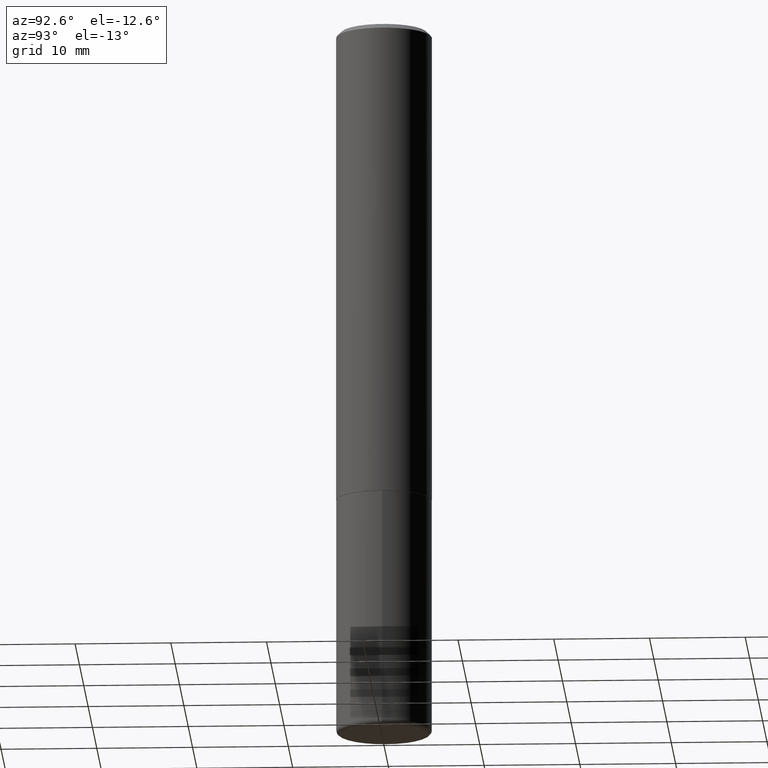
[diagram: clean part render]
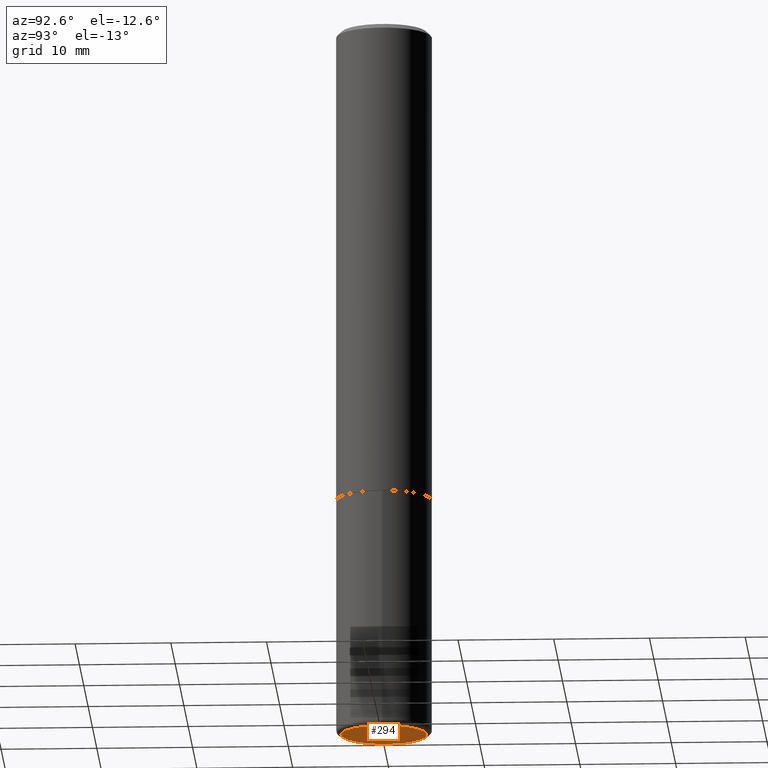
[diagram: same view with one face highlighted and labeled with its STEP entity id]
A machine part, auxiliary view. The second image highlights one B-rep face of the part: STEP entity #294.
In plain terms, the highlighted planar face has unit normal (0, -0, -1).
Its self-contained STEP definition (entity closure, byte-faithful):
#48 = EDGE_CURVE ( 'NONE', #405, #213, #348, .T. ) ;
#52 = DIRECTION ( 'NONE',  ( 1.000000000000000000, -6.982962677686272233E-15, 0.000000000000000000 ) ) ;
#77 = DIRECTION ( 'NONE',  ( -2.445468806185136597E-29, 3.491481338843145583E-15, 1.000000000000000000 ) ) ;
#94 = DIRECTION ( 'NONE',  ( 2.438088387897960049E-29, -3.491481338843145188E-15, -1.000000000000000000 ) ) ;
#96 = CARTESIAN_POINT ( 'NONE',  ( 7.220980290903470182E-29, -1.030964609733603853E-14, -2.952799999999999869 ) ) ;
#110 = ORIENTED_EDGE ( 'NONE', *, *, #48, .F. ) ;
#118 = DIRECTION ( 'NONE',  ( -2.445468806185136597E-29, 3.491481338843145583E-15, 1.000000000000000000 ) ) ;
#133 = AXIS2_PLACEMENT_3D ( 'NONE', #340, #118, #52 ) ;
#138 = DIRECTION ( 'NONE',  ( 1.000000000000000000, -6.982962677686272233E-15, 0.000000000000000000 ) ) ;
#169 = CIRCLE ( 'NONE', #133, 0.1771500000000000019 ) ;
#173 = ORIENTED_EDGE ( 'NONE', *, *, #200, .F. ) ;
#176 = AXIS2_PLACEMENT_3D ( 'NONE', #264, #77, #138 ) ;
#190 = CARTESIAN_POINT ( 'NONE',  ( -0.1771500000000000019, -8.946540090277048352E-15, -2.952799999999999869 ) ) ;
#200 = EDGE_CURVE ( 'NONE', #213, #405, #169, .T. ) ;
#213 = VERTEX_POINT ( 'NONE', #247 ) ;
#247 = CARTESIAN_POINT ( 'NONE',  ( 0.1771500000000000019, -1.154667793568816250E-14, -2.952799999999999869 ) ) ;
#264 = CARTESIAN_POINT ( 'NONE',  ( 7.220980290903470182E-29, -1.030964609733603853E-14, -2.952799999999999869 ) ) ;
#292 = EDGE_LOOP ( 'NONE', ( #173, #110 ) ) ;
#294 = ADVANCED_FACE ( 'NONE', ( #319 ), #385, .T. ) ;
#319 = FACE_OUTER_BOUND ( 'NONE', #292, .T. ) ;
#340 = CARTESIAN_POINT ( 'NONE',  ( 7.220980290903470182E-29, -1.030964609733603853E-14, -2.952799999999999869 ) ) ;
#348 = CIRCLE ( 'NONE', #176, 0.1771500000000000019 ) ;
#354 = DIRECTION ( 'NONE',  ( -1.000000000000000000, 6.982962677686265922E-15, -4.876176775795935793E-29 ) ) ;
#385 = PLANE ( 'NONE',  #402 ) ;
#402 = AXIS2_PLACEMENT_3D ( 'NONE', #96, #94, #354 ) ;
#405 = VERTEX_POINT ( 'NONE', #190 ) ;